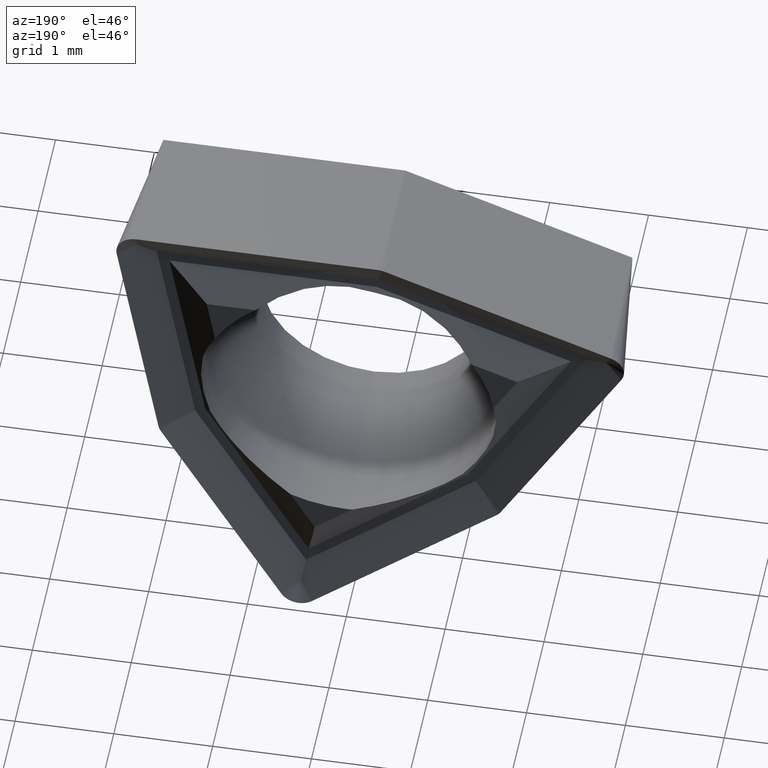
[diagram: clean part render]
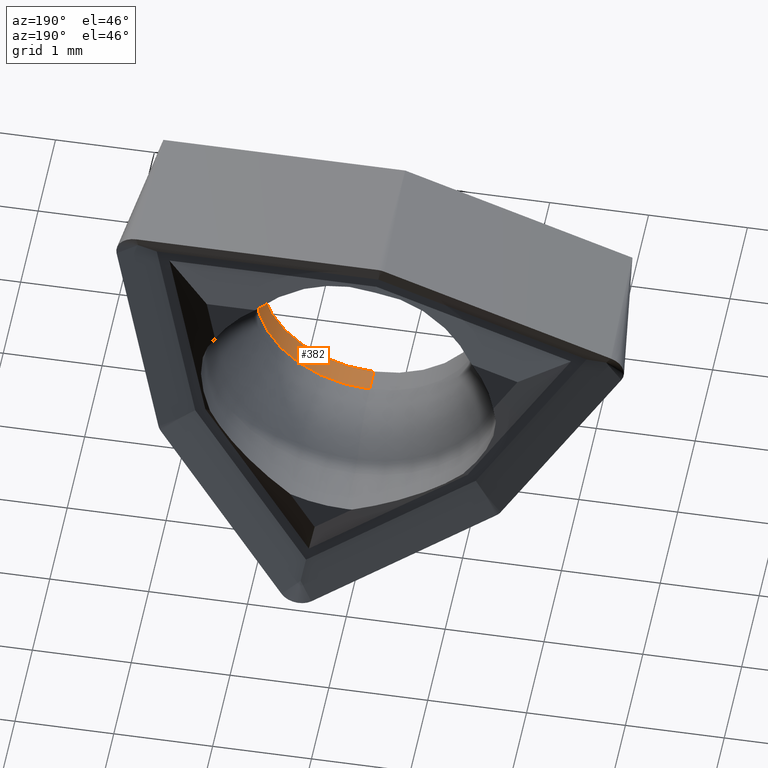
[diagram: same view with one face highlighted and labeled with its STEP entity id]
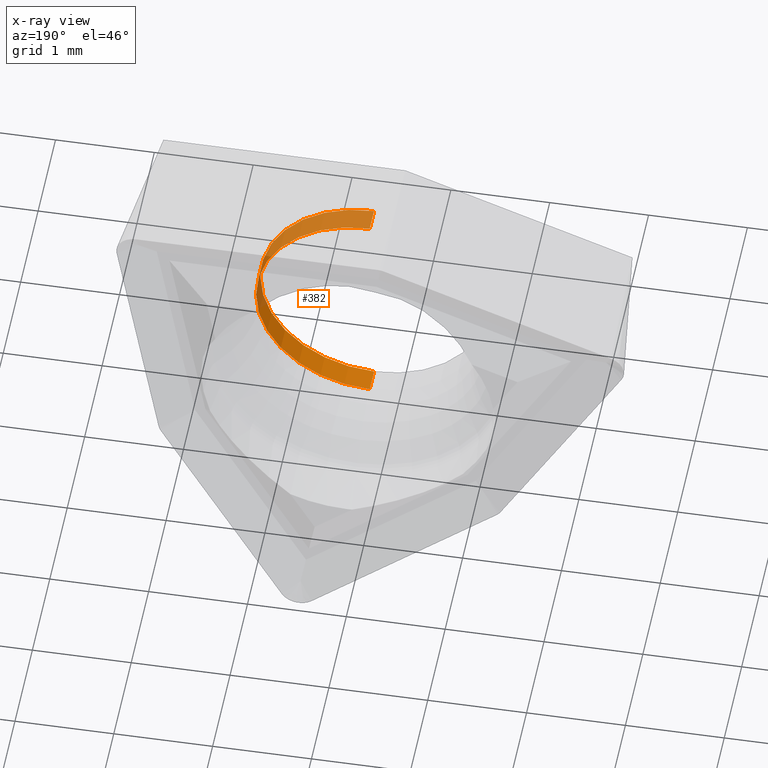
[diagram: x-ray of the same camera — body ghosted, the highlighted face saturated]
A machine part, auxiliary view. The second image highlights one B-rep face of the part: STEP entity #382.
The next image is the same camera in x-ray: the body ghosted, the highlighted face saturated — about 46% of this face is hidden behind the body in this view.
In plain terms, the highlighted cylindrical surface (partial cylindrical patch) has radius 1.15 mm, axis along (-0, 1, -0).
Its self-contained STEP definition (entity closure, byte-faithful):
#18 = CARTESIAN_POINT ( 'NONE',  ( 1.408343819019455535E-16, 1.234325842091266168, -1.149999999999999467 ) ) ;
#19 = DIRECTION ( 'NONE',  ( -0.000000000000000000, 1.000000000000000000, -0.000000000000000000 ) ) ;
#110 = CARTESIAN_POINT ( 'NONE',  ( 0.000000000000000000, -1.590000000170530559, 0.000000000000000000 ) ) ;
#116 = ORIENTED_EDGE ( 'NONE', *, *, #1203, .T. ) ;
#244 = CYLINDRICAL_SURFACE ( 'NONE', #943, 1.149999999999999467 ) ;
#258 = LINE ( 'NONE', #876, #715 ) ;
#307 = CIRCLE ( 'NONE', #814, 1.149999999999999467 ) ;
#335 = CARTESIAN_POINT ( 'NONE',  ( 0.000000000000000000, -1.342911620515460758, 1.149999999999999467 ) ) ;
#346 = VECTOR ( 'NONE', #422, 1000.000000000000000 ) ;
#382 = ADVANCED_FACE ( 'NONE', ( #1035 ), #244, .F. ) ;
#422 = DIRECTION ( 'NONE',  ( -0.000000000000000000, 1.000000000000000000, -0.000000000000000000 ) ) ;
#431 = DIRECTION ( 'NONE',  ( -0.000000000000000000, 1.000000000000000000, -0.000000000000000000 ) ) ;
#438 = CIRCLE ( 'NONE', #875, 1.149999999999999467 ) ;
#448 = CARTESIAN_POINT ( 'NONE',  ( 0.000000000000000000, 1.234325842091266168, 0.000000000000000000 ) ) ;
#484 = EDGE_CURVE ( 'NONE', #919, #758, #258, .T. ) ;
#606 = CARTESIAN_POINT ( 'NONE',  ( 0.000000000000000000, -1.342911620515460758, 0.000000000000000000 ) ) ;
#643 = VERTEX_POINT ( 'NONE', #1279 ) ;
#679 = EDGE_LOOP ( 'NONE', ( #1225, #940, #856, #116 ) ) ;
#715 = VECTOR ( 'NONE', #779, 1000.000000000000000 ) ;
#758 = VERTEX_POINT ( 'NONE', #335 ) ;
#779 = DIRECTION ( 'NONE',  ( -0.000000000000000000, 1.000000000000000000, -0.000000000000000000 ) ) ;
#782 = VERTEX_POINT ( 'NONE', #1048 ) ;
#786 = EDGE_CURVE ( 'NONE', #782, #643, #922, .T. ) ;
#795 = CARTESIAN_POINT ( 'NONE',  ( 0.000000000000000000, -1.590000000170530559, 1.149999999999999467 ) ) ;
#814 = AXIS2_PLACEMENT_3D ( 'NONE', #110, #899, #1201 ) ;
#847 = DIRECTION ( 'NONE',  ( 0.000000000000000000, 0.000000000000000000, 1.000000000000000000 ) ) ;
#856 = ORIENTED_EDGE ( 'NONE', *, *, #484, .T. ) ;
#875 = AXIS2_PLACEMENT_3D ( 'NONE', #606, #19, #1029 ) ;
#876 = CARTESIAN_POINT ( 'NONE',  ( 0.000000000000000000, 1.234325842091266168, 1.149999999999999467 ) ) ;
#899 = DIRECTION ( 'NONE',  ( -0.000000000000000000, 1.000000000000000000, -0.000000000000000000 ) ) ;
#919 = VERTEX_POINT ( 'NONE', #795 ) ;
#922 = LINE ( 'NONE', #18, #346 ) ;
#940 = ORIENTED_EDGE ( 'NONE', *, *, #1017, .F. ) ;
#943 = AXIS2_PLACEMENT_3D ( 'NONE', #448, #431, #847 ) ;
#1017 = EDGE_CURVE ( 'NONE', #919, #782, #307, .T. ) ;
#1029 = DIRECTION ( 'NONE',  ( 0.000000000000000000, 0.000000000000000000, 1.000000000000000000 ) ) ;
#1035 = FACE_OUTER_BOUND ( 'NONE', #679, .T. ) ;
#1048 = CARTESIAN_POINT ( 'NONE',  ( 1.408343819019455535E-16, -1.590000000170530559, -1.149999999999999467 ) ) ;
#1201 = DIRECTION ( 'NONE',  ( 0.000000000000000000, 0.000000000000000000, 1.000000000000000000 ) ) ;
#1203 = EDGE_CURVE ( 'NONE', #758, #643, #438, .T. ) ;
#1225 = ORIENTED_EDGE ( 'NONE', *, *, #786, .F. ) ;
#1279 = CARTESIAN_POINT ( 'NONE',  ( 1.586637985365908693E-16, -1.342911620515460758, -1.149999999999999467 ) ) ;